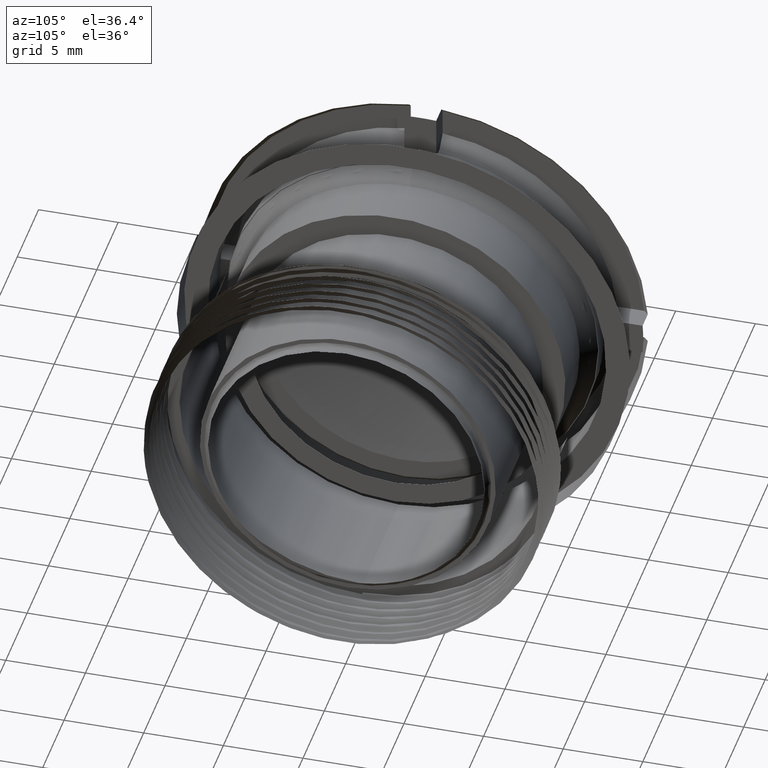
[diagram: clean part render]
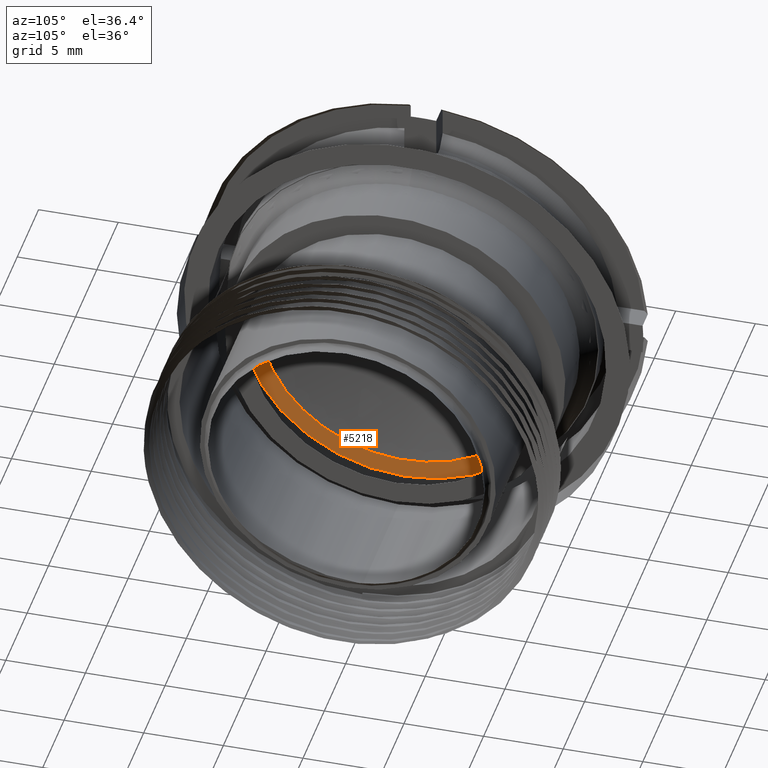
[diagram: same view with one face highlighted and labeled with its STEP entity id]
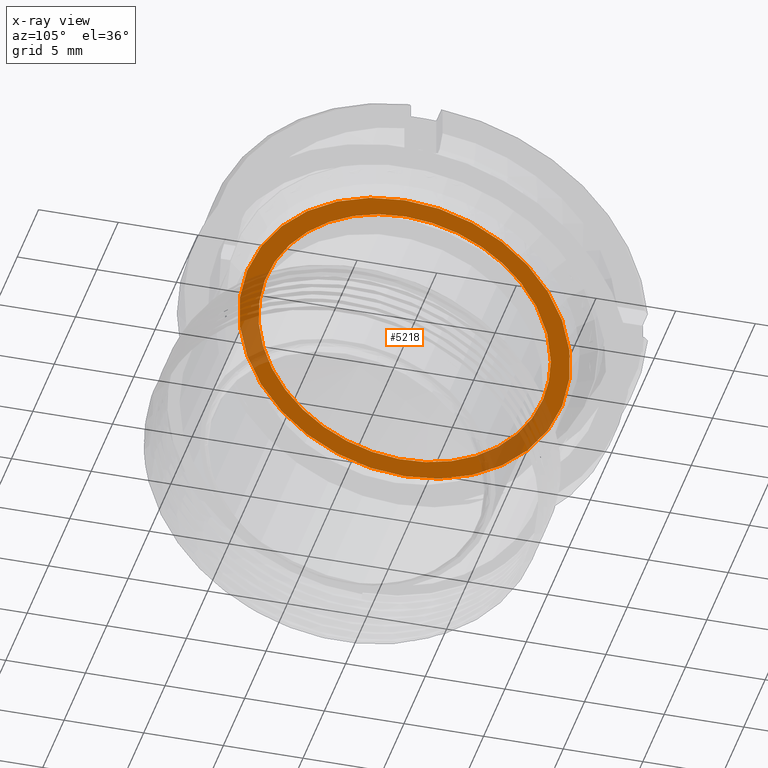
[diagram: x-ray of the same camera — body ghosted, the highlighted face saturated]
A machine part, auxiliary view. The second image highlights one B-rep face of the part: STEP entity #5218.
The next image is the same camera in x-ray: the body ghosted, the highlighted face saturated — about 20% of this face is hidden behind the body in this view.
In plain terms, the highlighted planar face has unit normal (-1, 0, 0).
Its self-contained STEP definition (entity closure, byte-faithful):
#17 = CARTESIAN_POINT ( 'NONE',  ( 76.16693800000000181, -6.067992975670062350, -6.915118651849148534 ) ) ;
#42 = CARTESIAN_POINT ( 'NONE',  ( 76.16693800000008707, -2.950120448403380280, 8.714305463740647184 ) ) ;
#71 = CARTESIAN_POINT ( 'NONE',  ( 76.16693800000001602, -9.180456655308615765, -0.6064495966078468081 ) ) ;
#101 = CARTESIAN_POINT ( 'NONE',  ( 76.16693800000000181, -9.120955190094180765, -1.202765922022912326 ) ) ;
#128 = CARTESIAN_POINT ( 'NONE',  ( 76.16693800000000181, 4.590789916698594375, -7.955900392239438901 ) ) ;
#296 = B_SPLINE_CURVE_WITH_KNOTS ( 'NONE', 3,
 ( #4015, #342, #3643, #2828, #1967, #3619, #5235, #1578, #2429, #3211, #4848, #1170, #2801, #4449, #2403, #1196, #4043, #5262, #792, #3236, #368, #4872, #392, #4604, #4975, #4231, #4923, #42, #1761, #3773, #2933, #4122, #2905, #1654, #842, #2507, #4576, #3745, #873, #4146, #473, #4630, #3290, #497, #71, #101, #3370, #2564, #3340, #2105, #1733, #2133, #3718, #527, #17, #1246, #5002, #1331, #1704, #1677, #2990, #3693, #1304, #899, #2961, #4172, #2533, #2878, #3803, #551, #924, #2163, #2590, #128, #3400, #5031, #1359, #951, #4525, #2480, #362, #4812, #1513, #1137, #1989, #3982, #3205, #4841 ),
 .UNSPECIFIED., .T., .F.,
 ( 4, 2, 2, 2, 2, 2, 2, 2, 1, 2, 2, 2, 2, 2, 2, 2, 2, 2, 2, 2, 2, 2, 2, 2, 2, 2, 2, 2, 2, 2, 1, 2, 2, 2, 2, 2, 2, 2, 2, 2, 2, 2, 2, 2, 4 ),
 ( 0.000000000000000000, 0.001793525808329454827, 0.002690288712494182891, 0.003587051616658911389, 0.005380577424988365783, 0.007174103233317821043, 0.008967629041647275437, 0.009864391945812001766, 0.01076115484997672983, 0.01165791775414145616, 0.01255468065830618422, 0.01434820646663563862, 0.01524496937080036668, 0.01614173227496509475, 0.01793525808329454740, 0.01883202098745927547, 0.01972878389162400353, 0.02152230969995345966, 0.02331583550828291232, 0.02421259841244764038, 0.02510936131661236845, 0.02690288712494182111, 0.02869641293327127723, 0.03048993874160073336, 0.03138670164576545796, 0.03228346454993018949, 0.03407699035825963868, 0.03587051616658909481, 0.03766404197491855094, 0.03856080487908327553, 0.03945756778324800707, 0.04035433068741273166, 0.04125109359157746319, 0.04304461939990691932, 0.04394138230407164392, 0.04483814520823636851, 0.04663167101656582464, 0.04752843392073055617, 0.04842519682489528077, 0.05021872263322473690, 0.05201224844155419302, 0.05290901134571891762, 0.05380577424988364221, 0.05559930005821309834, 0.05739282586654255447 ),
 .UNSPECIFIED. ) ;
#342 = CARTESIAN_POINT ( 'NONE',  ( 76.16693800000001602, 9.180456655308521619, 0.6064495966078521372 ) ) ;
#349 = CARTESIAN_POINT ( 'NONE',  ( 76.16693800000000181, 10.39999999999963975, 0.000000000000000000 ) ) ;
#362 = CARTESIAN_POINT ( 'NONE',  ( 76.16693800000001602, 7.949710263242277364, -4.601470531166019562 ) ) ;
#368 = CARTESIAN_POINT ( 'NONE',  ( 76.16693799999998760, 1.200447981483611759, 9.121657247247815903 ) ) ;
#392 = CARTESIAN_POINT ( 'NONE',  ( 76.16693800000001602, -0.2931213093561487737, 9.180656823895930074 ) ) ;
#425 = VERTEX_POINT ( 'NONE', #2411 ) ;
#452 = CARTESIAN_POINT ( 'NONE',  ( 76.16693799999998760, 9.180456655308518066, 0.000000000000000000 ) ) ;
#473 = CARTESIAN_POINT ( 'NONE',  ( 76.16693800000000181, -8.710555343719230237, 2.961343657231803039 ) ) ;
#497 = CARTESIAN_POINT ( 'NONE',  ( 76.16693800000000181, -9.180456655308617542, 0.6064495966078693456 ) ) ;
#527 = CARTESIAN_POINT ( 'NONE',  ( 76.16693800000000181, -6.914908267171385958, -6.068232722839332460 ) ) ;
#551 = CARTESIAN_POINT ( 'NONE',  ( 76.16693799999997339, 2.377873962563108456, -8.887448138881625326 ) ) ;
#792 = CARTESIAN_POINT ( 'NONE',  ( 76.16693800000000181, 2.383600629453630937, 8.870704263240831722 ) ) ;
#842 = CARTESIAN_POINT ( 'NONE',  ( 76.16693800000000181, -6.915502808480756158, 6.068248057808265372 ) ) ;
#873 = CARTESIAN_POINT ( 'NONE',  ( 76.16693799999998760, -8.234107345478822282, 4.070737100553144749 ) ) ;
#899 = CARTESIAN_POINT ( 'NONE',  ( 76.16693799999997339, -1.200447981483623971, -9.121657247247796363 ) ) ;
#924 = CARTESIAN_POINT ( 'NONE',  ( 76.16693800000000181, 2.950120448403402929, -8.714305463740654289 ) ) ;
#951 = CARTESIAN_POINT ( 'NONE',  ( 76.16693799999997339, 6.915502808480756158, -6.068248057808228957 ) ) ;
#1020 = EDGE_LOOP ( 'NONE', ( #4639 ) ) ;
#1095 = FACE_BOUND ( 'NONE', #1020, .T. ) ;
#1137 = CARTESIAN_POINT ( 'NONE',  ( 76.16693799999997339, 8.710555343719287080, -2.961343657231813253 ) ) ;
#1170 = CARTESIAN_POINT ( 'NONE',  ( 76.16693799999998760, 6.067992975670070344, 6.915118651849156528 ) ) ;
#1196 = CARTESIAN_POINT ( 'NONE',  ( 76.16693800000000181, 4.062686760338674041, 8.238059833445596780 ) ) ;
#1246 = CARTESIAN_POINT ( 'NONE',  ( 76.16693800000003023, -5.605885115813634023, -7.295144118059245564 ) ) ;
#1304 = CARTESIAN_POINT ( 'NONE',  ( 76.16693800000001602, -2.089131363696328680, -8.944693679402792696 ) ) ;
#1331 = CARTESIAN_POINT ( 'NONE',  ( 76.16693800000003023, -4.592629379669612710, -7.954797854946249025 ) ) ;
#1336 = EDGE_CURVE ( 'NONE', #5295, #5295, #296, .T. ) ;
#1359 = CARTESIAN_POINT ( 'NONE',  ( 76.16693799999994496, 6.058102930482522908, -6.924391848305353925 ) ) ;
#1513 = CARTESIAN_POINT ( 'NONE',  ( 76.16693800000001602, 8.364501094137132498, -3.795595132417886930 ) ) ;
#1578 = CARTESIAN_POINT ( 'NONE',  ( 76.16693800000000181, 8.250634361958354646, 4.070607949467730080 ) ) ;
#1654 = CARTESIAN_POINT ( 'NONE',  ( 76.16693800000003023, -6.058102930482515802, 6.924391848305387676 ) ) ;
#1677 = CARTESIAN_POINT ( 'NONE',  ( 76.16693799999998760, -3.521499193258772031, -8.493965861547957630 ) ) ;
#1704 = CARTESIAN_POINT ( 'NONE',  ( 76.16693800000003023, -4.062686760338697134, -8.238059833445650071 ) ) ;
#1733 = CARTESIAN_POINT ( 'NONE',  ( 76.16693799999997339, -8.250634361958358198, -4.070607949467717646 ) ) ;
#1761 = CARTESIAN_POINT ( 'NONE',  ( 76.16693800000001602, -3.783695104249205965, 8.369875880319066042 ) ) ;
#1967 = CARTESIAN_POINT ( 'NONE',  ( 76.16693800000001602, 8.873443277332555112, 2.373513122402298503 ) ) ;
#1989 = CARTESIAN_POINT ( 'NONE',  ( 76.16693799999998760, 8.884372211340783920, -2.389189820062310954 ) ) ;
#2105 = CARTESIAN_POINT ( 'NONE',  ( 76.16693800000000181, -8.596172645555059333, -3.236836149862953871 ) ) ;
#2133 = CARTESIAN_POINT ( 'NONE',  ( 76.16693799999998760, -7.968701268040450536, -4.597873946043429250 ) ) ;
#2163 = CARTESIAN_POINT ( 'NONE',  ( 76.16693799999998760, 3.783695104249237495, -8.369875880319067818 ) ) ;
#2297 = EDGE_LOOP ( 'NONE', ( #2321 ) ) ;
#2301 = PLANE ( 'NONE',  #4884 ) ;
#2321 = ORIENTED_EDGE ( 'NONE', *, *, #4953, .F. ) ;
#2323 = DIRECTION ( 'NONE',  ( -1.000000000000000000, 0.000000000000000000, 0.000000000000000000 ) ) ;
#2328 = DIRECTION ( 'NONE',  ( 0.000000000000000000, 0.000000000000000000, 1.000000000000000000 ) ) ;
#2403 = CARTESIAN_POINT ( 'NONE',  ( 76.16693800000000181, 4.592629379669580736, 7.954797854946196622 ) ) ;
#2411 = CARTESIAN_POINT ( 'NONE',  ( 76.16693800000000181, 0.000000000000000000, 10.39999999999963265 ) ) ;
#2429 = CARTESIAN_POINT ( 'NONE',  ( 76.16693800000000181, 7.968701268040495833, 4.597873946043470994 ) ) ;
#2480 = CARTESIAN_POINT ( 'NONE',  ( 76.16693799999998760, 7.795327260835929195, -4.858297246262418767 ) ) ;
#2507 = CARTESIAN_POINT ( 'NONE',  ( 76.16693800000003023, -7.296375478461236241, 5.603683487100683536 ) ) ;
#2533 = CARTESIAN_POINT ( 'NONE',  ( 76.16693799999998760, 0.5932154475656756798, -9.166257667079484861 ) ) ;
#2564 = CARTESIAN_POINT ( 'NONE',  ( 76.16693800000003023, -8.873443277332583534, -2.373513122402287845 ) ) ;
#2590 = CARTESIAN_POINT ( 'NONE',  ( 76.16693799999998760, 4.058844267132132089, -8.239993102282658910 ) ) ;
#2801 = CARTESIAN_POINT ( 'NONE',  ( 76.16693799999993075, 5.605885115813608266, 7.295144118059202931 ) ) ;
#2828 = CARTESIAN_POINT ( 'NONE',  ( 76.16693799999998760, 8.946101051227792311, 2.082662152616612250 ) ) ;
#2878 = CARTESIAN_POINT ( 'NONE',  ( 76.16693800000001602, 1.194988968812993546, -9.107369848147117253 ) ) ;
#2905 = CARTESIAN_POINT ( 'NONE',  ( 76.16693800000000181, -5.594335721382852178, 7.303561402248840650 ) ) ;
#2933 = CARTESIAN_POINT ( 'NONE',  ( 76.16693799999998760, -4.590789916698594375, 7.955900392239426466 ) ) ;
#2961 = CARTESIAN_POINT ( 'NONE',  ( 76.16693800000004444, -0.6048533078348579117, -9.180050030178874110 ) ) ;
#2990 = CARTESIAN_POINT ( 'NONE',  ( 76.16693799999998760, -2.958162421313011770, -8.695988798046068169 ) ) ;
#2996 = AXIS2_PLACEMENT_3D ( 'NONE', #3157, #2323, #3965 ) ;
#3157 = CARTESIAN_POINT ( 'NONE',  ( 76.16693800000000181, 0.000000000000000000, 0.000000000000000000 ) ) ;
#3205 = CARTESIAN_POINT ( 'NONE',  ( 76.16693799999995917, 9.180456655308523395, -0.6064495966078509159 ) ) ;
#3211 = CARTESIAN_POINT ( 'NONE',  ( 76.16693799999995917, 7.302613354806065438, 5.595755794634317937 ) ) ;
#3236 = CARTESIAN_POINT ( 'NONE',  ( 76.16693800000003023, 2.089131363696308696, 8.944693679402814013 ) ) ;
#3290 = CARTESIAN_POINT ( 'NONE',  ( 76.16693800000001602, -9.119658768107541391, 1.213310157879260442 ) ) ;
#3340 = CARTESIAN_POINT ( 'NONE',  ( 76.16693800000000181, -8.698725982751925656, -2.950207859668747989 ) ) ;
#3370 = CARTESIAN_POINT ( 'NONE',  ( 76.16693800000004444, -8.946101051227847378, -2.082662152616640672 ) ) ;
#3400 = CARTESIAN_POINT ( 'NONE',  ( 76.16693800000000181, 4.848052119466546905, -7.801706818185674130 ) ) ;
#3619 = CARTESIAN_POINT ( 'NONE',  ( 76.16693800000000181, 8.698725982751897234, 2.950207859668755095 ) ) ;
#3643 = CARTESIAN_POINT ( 'NONE',  ( 76.16693799999997339, 9.120955190094129250, 1.202765922022886791 ) ) ;
#3688 = CIRCLE ( 'NONE', #2996, 10.39999999999963265 ) ;
#3693 = CARTESIAN_POINT ( 'NONE',  ( 76.16693800000000181, -2.383600629453622055, -8.870704263240856591 ) ) ;
#3718 = CARTESIAN_POINT ( 'NONE',  ( 76.16693799999997339, -7.302613354806030799, -5.595755794634278857 ) ) ;
#3745 = CARTESIAN_POINT ( 'NONE',  ( 76.16693800000001602, -7.949710263242235619, 4.601470531166010680 ) ) ;
#3773 = CARTESIAN_POINT ( 'NONE',  ( 76.16693800000001602, -4.058844267132139194, 8.239993102282644699 ) ) ;
#3803 = CARTESIAN_POINT ( 'NONE',  ( 76.16693799999995917, 1.494843941013493716, -9.062907074598147261 ) ) ;
#3965 = DIRECTION ( 'NONE',  ( 0.000000000000000000, 0.000000000000000000, 1.000000000000000000 ) ) ;
#3982 = CARTESIAN_POINT ( 'NONE',  ( 76.16693800000000181, 9.119658768107532509, -1.213310157879281759 ) ) ;
#4015 = CARTESIAN_POINT ( 'NONE',  ( 76.16693799999998760, 9.180456655308523395, 5.963111948670274387E-16 ) ) ;
#4043 = CARTESIAN_POINT ( 'NONE',  ( 76.16693800000000181, 3.521499193258808447, 8.493965861548025131 ) ) ;
#4122 = CARTESIAN_POINT ( 'NONE',  ( 76.16693800000001602, -4.848052119466582432, 7.801706818185712322 ) ) ;
#4146 = CARTESIAN_POINT ( 'NONE',  ( 76.16693799999997339, -8.364501094137070325, 3.795595132417887374 ) ) ;
#4172 = CARTESIAN_POINT ( 'NONE',  ( 76.16693800000004444, 0.2931213093561688132, -9.180656823895985141 ) ) ;
#4231 = CARTESIAN_POINT ( 'NONE',  ( 76.16693799999997339, -1.494843941013500821, 9.062907074598198776 ) ) ;
#4346 = FACE_OUTER_BOUND ( 'NONE', #2297, .T. ) ;
#4427 = DIRECTION ( 'NONE',  ( -1.000000000000000000, 0.000000000000000000, 0.000000000000000000 ) ) ;
#4449 = CARTESIAN_POINT ( 'NONE',  ( 76.16693799999998760, 4.853367367686430178, 7.798505139000314834 ) ) ;
#4525 = CARTESIAN_POINT ( 'NONE',  ( 76.16693800000003023, 7.296375478461222919, -5.603683487100652449 ) ) ;
#4576 = CARTESIAN_POINT ( 'NONE',  ( 76.16693799999998760, -7.795327260835945182, 4.858297246262448965 ) ) ;
#4604 = CARTESIAN_POINT ( 'NONE',  ( 76.16693800000001602, -0.5932154475656717940, 9.166257667079444005 ) ) ;
#4630 = CARTESIAN_POINT ( 'NONE',  ( 76.16693800000003023, -8.884372211340787473, 2.389189820062297631 ) ) ;
#4639 = ORIENTED_EDGE ( 'NONE', *, *, #1336, .F. ) ;
#4812 = CARTESIAN_POINT ( 'NONE',  ( 76.16693800000005865, 8.234107345478864914, -4.070737100553158072 ) ) ;
#4841 = CARTESIAN_POINT ( 'NONE',  ( 76.16693799999998760, 9.180456655308523395, 5.963111948670274387E-16 ) ) ;
#4848 = CARTESIAN_POINT ( 'NONE',  ( 76.16693800000000181, 6.914908267171391287, 6.068232722839341342 ) ) ;
#4872 = CARTESIAN_POINT ( 'NONE',  ( 76.16693800000008707, 0.6048533078348692360, 9.180050030178819043 ) ) ;
#4884 = AXIS2_PLACEMENT_3D ( 'NONE', #349, #4427, #2328 ) ;
#4923 = CARTESIAN_POINT ( 'NONE',  ( 76.16693800000000181, -2.377873962563114230, 8.887448138881682169 ) ) ;
#4953 = EDGE_CURVE ( 'NONE', #425, #425, #3688, .T. ) ;
#4975 = CARTESIAN_POINT ( 'NONE',  ( 76.16693799999998760, -1.194988968812984220, 9.107369848147076397 ) ) ;
#5002 = CARTESIAN_POINT ( 'NONE',  ( 76.16693800000000181, -4.853367367686459488, -7.798505139000359243 ) ) ;
#5031 = CARTESIAN_POINT ( 'NONE',  ( 76.16693800000001602, 5.594335721382813986, -7.303561402248805123 ) ) ;
#5218 = ADVANCED_FACE ( 'NONE', ( #4346, #1095 ), #2301, .F. ) ;
#5235 = CARTESIAN_POINT ( 'NONE',  ( 76.16693799999998760, 8.596172645555055780, 3.236836149862967194 ) ) ;
#5262 = CARTESIAN_POINT ( 'NONE',  ( 76.16693799999997339, 2.958162421313015766, 8.695988798046046853 ) ) ;
#5295 = VERTEX_POINT ( 'NONE', #452 ) ;